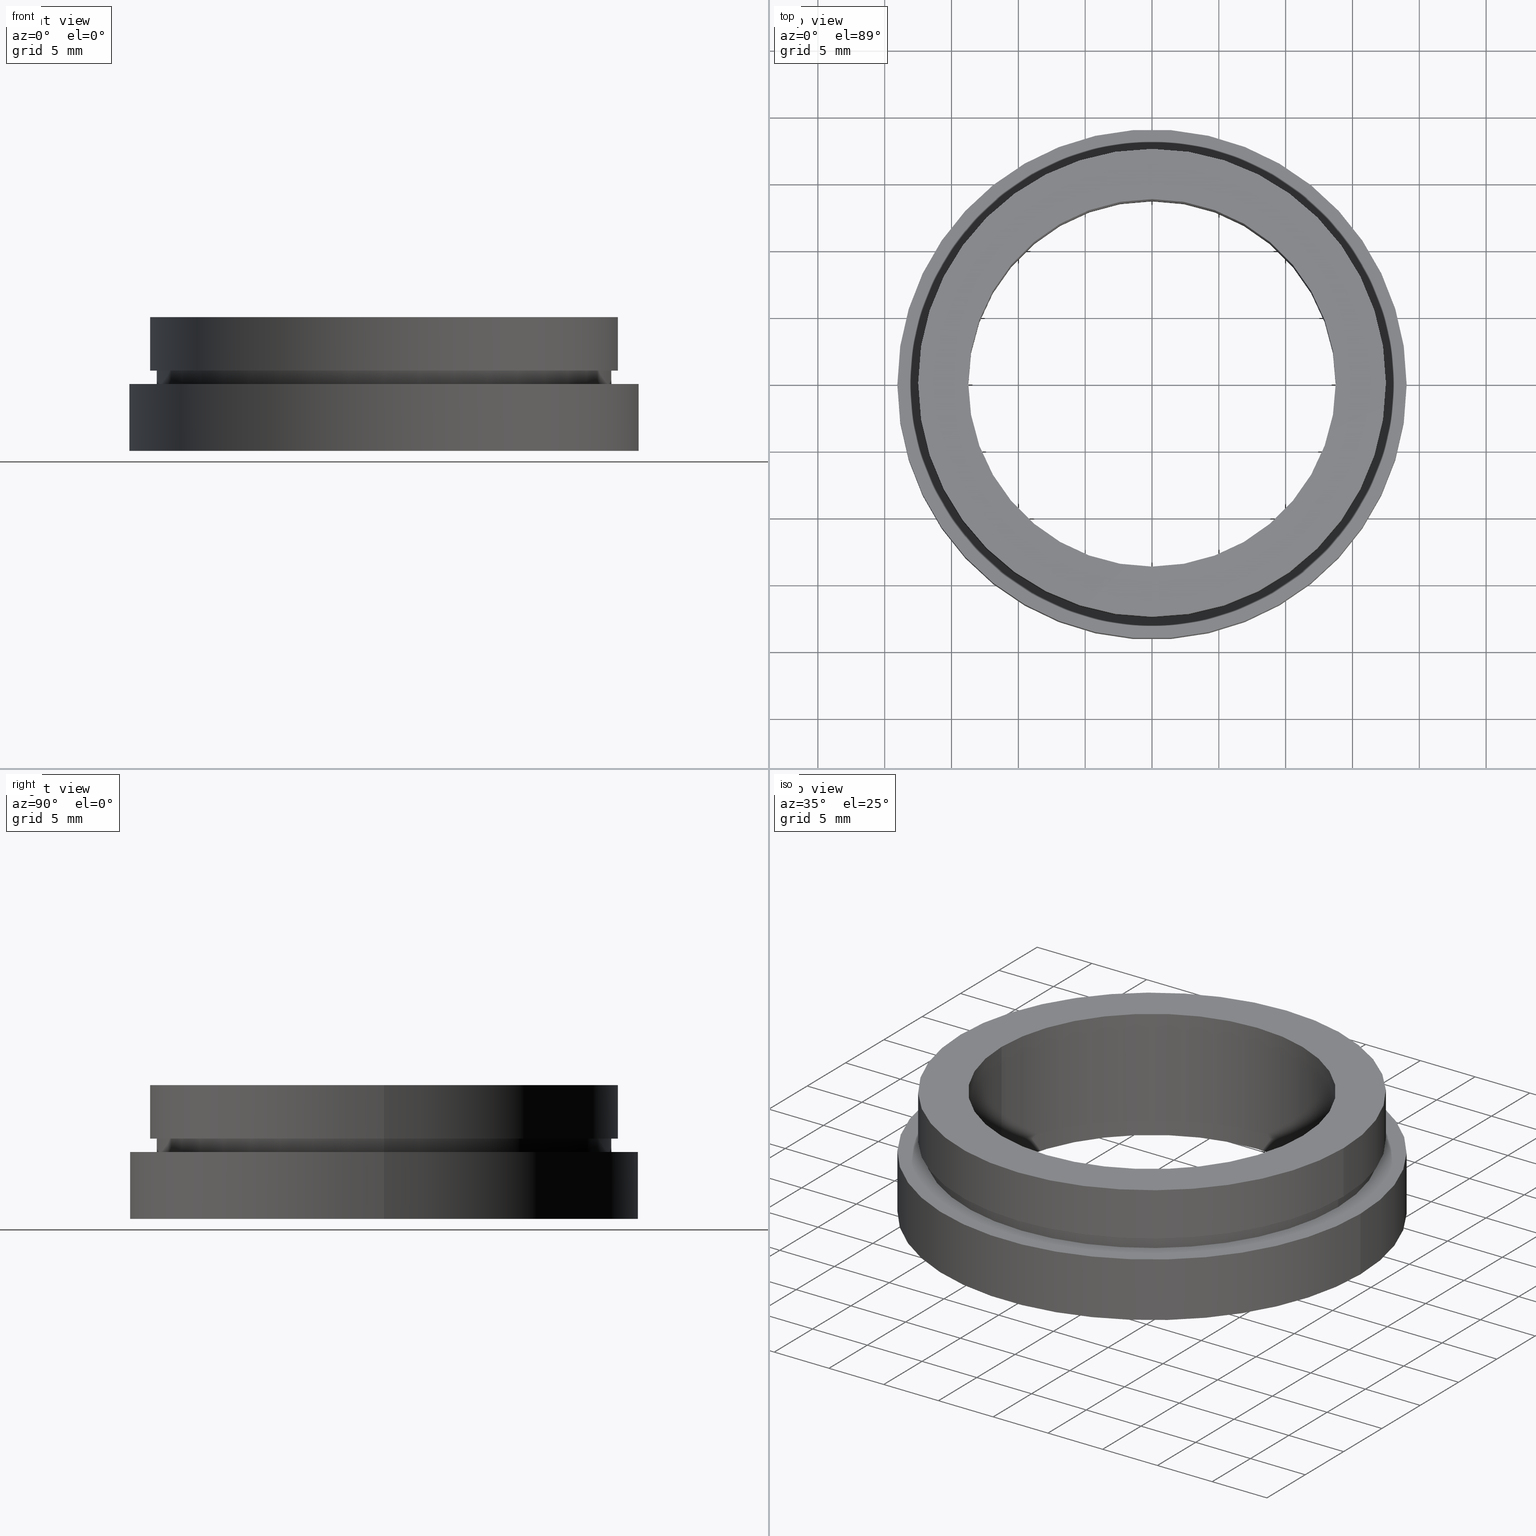
[diagram: canonical four-view strip — front | top / right | iso, engineering-drawing reading convention]
A machine part, canonical four-view strip (front | top / right | iso — engineering-drawing reading convention). The complete STEP part file that produces these views, byte-faithful:
ISO-10303-21;
HEADER;
FILE_DESCRIPTION (( 'STEP AP214' ),
    '1' );
FILE_NAME ('504048.STEP',
    '2019-09-16T03:32:41',
    ( 'user' ),
    ( '΢���й�' ),
    'SwSTEP 2.0',
    'SolidWorks 2016',
    '' );
FILE_SCHEMA (( 'AUTOMOTIVE_DESIGN' ));
ENDSEC;

DATA;
#1 = ADVANCED_FACE ( 'NONE', ( #116 ), #391, .T. ) ;
#2 = CARTESIAN_POINT ( 'NONE',  ( -13.75000000000000500, 0.0000000000000000000, -9.999999999999998200 ) ) ;
#3 = AXIS2_PLACEMENT_3D ( 'NONE', #252, #27, #156 ) ;
#4 = CARTESIAN_POINT ( 'NONE',  ( 17.00000000000000400, 2.081899558550500700E-015, -5.000000000000000900 ) ) ;
#5 = DIRECTION ( 'NONE',  ( -0.0000000000000000000, 0.0000000000000000000, -1.000000000000000000 ) ) ;
#6 = ORIENTED_EDGE ( 'NONE', *, *, #59, .T. ) ;
#7 = DIRECTION ( 'NONE',  ( -1.000000000000000000, 0.0000000000000000000, 0.0000000000000000000 ) ) ;
#8 = CARTESIAN_POINT ( 'NONE',  ( -13.75000000000000400, 0.0000000000000000000, 0.0000000000000000000 ) ) ;
#9 = FACE_OUTER_BOUND ( 'NONE', #60, .T. ) ;
#10 = ADVANCED_FACE ( 'NONE', ( #416 ), #41, .F. ) ;
#11 = DIRECTION ( 'NONE',  ( -0.0000000000000000000, -0.0000000000000000000, -1.000000000000000000 ) ) ;
#12 = FACE_OUTER_BOUND ( 'NONE', #78, .T. ) ;
#13 = DIRECTION ( 'NONE',  ( -1.000000000000000000, 0.0000000000000000000, 0.0000000000000000000 ) ) ;
#14 = ORIENTED_EDGE ( 'NONE', *, *, #316, .T. ) ;
#15 = AXIS2_PLACEMENT_3D ( 'NONE', #136, #230, #246 ) ;
#16 = DIRECTION ( 'NONE',  ( 1.000000000000000000, 0.0000000000000000000, -0.0000000000000000000 ) ) ;
#17 =( GEOMETRIC_REPRESENTATION_CONTEXT ( 3 ) GLOBAL_UNCERTAINTY_ASSIGNED_CONTEXT ( ( #304 ) ) GLOBAL_UNIT_ASSIGNED_CONTEXT ( ( #326, #81, #425 ) ) REPRESENTATION_CONTEXT ( 'NONE', 'WORKASPACE' ) );
#18 = CLOSED_SHELL ( 'NONE', ( #202, #407, #371, #278, #176, #1, #100, #135, #38, #401, #311, #10 ) ) ;
#19 =( LENGTH_UNIT ( ) NAMED_UNIT ( * ) SI_UNIT ( .MILLI., .METRE. ) );
#20 = CARTESIAN_POINT ( 'NONE',  ( 17.00000000000000400, 0.0000000000000000000, -5.000000000000000000 ) ) ;
#21 = FILL_AREA_STYLE_COLOUR ( '', #148 ) ;
#22 = CYLINDRICAL_SURFACE ( 'NONE', #3, 17.00000000000000400 ) ;
#23 = PRESENTATION_STYLE_ASSIGNMENT (( #276 ) ) ;
#24 = MECHANICAL_DESIGN_GEOMETRIC_PRESENTATION_REPRESENTATION (  '', ( #95 ), #17 ) ;
#25 = DIRECTION ( 'NONE',  ( -0.0000000000000000000, -0.0000000000000000000, -1.000000000000000000 ) ) ;
#26 = CARTESIAN_POINT ( 'NONE',  ( -19.05000000000000400, 0.0000000000000000000, -19.14057971014493000 ) ) ;
#27 = DIRECTION ( 'NONE',  ( -0.0000000000000000000, -0.0000000000000000000, -1.000000000000000000 ) ) ;
#28 = COLOUR_RGB ( '',1.000000000000000000, 1.000000000000000000, 1.000000000000000000 ) ;
#29 = EDGE_CURVE ( 'NONE', #339, #328, #33, .T. ) ;
#30 = CARTESIAN_POINT ( 'NONE',  ( 0.0000000000000000000, 0.0000000000000000000, -19.14057971014493000 ) ) ;
#31 = EDGE_CURVE ( 'NONE', #67, #261, #192, .T. ) ;
#32 = ORIENTED_EDGE ( 'NONE', *, *, #345, .T. ) ;
#33 = CIRCLE ( 'NONE', #255, 17.00000000000000400 ) ;
#34 = CIRCLE ( 'NONE', #172, 13.75000000000000500 ) ;
#35 = CARTESIAN_POINT ( 'NONE',  ( 0.0000000000000000000, 0.0000000000000000000, -4.000000000000000000 ) ) ;
#36 = SURFACE_SIDE_STYLE ('',( #299 ) ) ;
#37 = PRESENTATION_LAYER_ASSIGNMENT (  '', '', ( #95 ) ) ;
#38 = ADVANCED_FACE ( 'NONE', ( #215, #154 ), #420, .F. ) ;
#39 = CARTESIAN_POINT ( 'NONE',  ( 0.0000000000000000000, 0.0000000000000000000, -19.14057971014493000 ) ) ;
#40 = APPLICATION_PROTOCOL_DEFINITION ( 'draft international standard', 'automotive_design', 1998, #80 ) ;
#41 = CYLINDRICAL_SURFACE ( 'NONE', #218, 13.75000000000000500 ) ;
#42 = DIRECTION ( 'NONE',  ( -0.0000000000000000000, -0.0000000000000000000, -1.000000000000000000 ) ) ;
#43 = ORIENTED_EDGE ( 'NONE', *, *, #321, .T. ) ;
#44 = FILL_AREA_STYLE_COLOUR ( '', #28 ) ;
#45 = EDGE_LOOP ( 'NONE', ( #219, #410 ) ) ;
#46 = CARTESIAN_POINT ( 'NONE',  ( 17.50000000000000400, 0.0000000000000000000, -4.000000000000000000 ) ) ;
#47 = AXIS2_PLACEMENT_3D ( 'NONE', #203, #123, #57 ) ;
#48 = CARTESIAN_POINT ( 'NONE',  ( -17.50000000000000400, 0.0000000000000000000, -4.000000000000000000 ) ) ;
#49 = ORIENTED_EDGE ( 'NONE', *, *, #181, .T. ) ;
#50 = EDGE_CURVE ( 'NONE', #178, #399, #370, .T. ) ;
#51 = ORIENTED_EDGE ( 'NONE', *, *, #316, .F. ) ;
#52 = PRESENTATION_LAYER_ASSIGNMENT (  '', '', ( #240 ) ) ;
#53 = ORIENTED_EDGE ( 'NONE', *, *, #149, .F. ) ;
#54 = SURFACE_STYLE_USAGE ( .BOTH. , #129 ) ;
#55 = SURFACE_STYLE_USAGE ( .BOTH. , #174 ) ;
#56 =( LENGTH_UNIT ( ) NAMED_UNIT ( * ) SI_UNIT ( .MILLI., .METRE. ) );
#57 = DIRECTION ( 'NONE',  ( -1.000000000000000000, 0.0000000000000000000, 0.0000000000000000000 ) ) ;
#58 = AXIS2_PLACEMENT_3D ( 'NONE', #291, #159, #161 ) ;
#59 = EDGE_CURVE ( 'NONE', #160, #398, #34, .T. ) ;
#60 = EDGE_LOOP ( 'NONE', ( #405, #94, #354, #79 ) ) ;
#61 = STYLED_ITEM ( 'NONE', ( #310 ), #1 ) ;
#62 = LINE ( 'NONE', #237, #323 ) ;
#63 = CARTESIAN_POINT ( 'NONE',  ( 0.0000000000000000000, 0.0000000000000000000, 0.0000000000000000000 ) ) ;
#64 = SURFACE_STYLE_USAGE ( .BOTH. , #388 ) ;
#65 = AXIS2_PLACEMENT_3D ( 'NONE', #205, #188, #369 ) ;
#66 = ORIENTED_EDGE ( 'NONE', *, *, #367, .F. ) ;
#67 = VERTEX_POINT ( 'NONE', #308 ) ;
#68 = DIRECTION ( 'NONE',  ( -1.000000000000000000, 0.0000000000000000000, 0.0000000000000000000 ) ) ;
#69 = STYLED_ITEM ( 'NONE', ( #72 ), #10 ) ;
#70 = DIRECTION ( 'NONE',  ( 1.000000000000000000, 0.0000000000000000000, -0.0000000000000000000 ) ) ;
#71 = DIRECTION ( 'NONE',  ( -1.000000000000000000, 0.0000000000000000000, 0.0000000000000000000 ) ) ;
#72 = PRESENTATION_STYLE_ASSIGNMENT (( #298 ) ) ;
#73 = EDGE_LOOP ( 'NONE', ( #122, #153 ) ) ;
#74 = CARTESIAN_POINT ( 'NONE',  ( 17.00000000000000400, 2.081899558550500700E-015, -4.000000000000000000 ) ) ;
#75 = ORIENTED_EDGE ( 'NONE', *, *, #279, .F. ) ;
#76 = FILL_AREA_STYLE_COLOUR ( '', #273 ) ;
#77 = CARTESIAN_POINT ( 'NONE',  ( 0.0000000000000000000, 0.0000000000000000000, 0.0000000000000000000 ) ) ;
#78 = EDGE_LOOP ( 'NONE', ( #200, #197 ) ) ;
#79 = ORIENTED_EDGE ( 'NONE', *, *, #294, .F. ) ;
#80 = APPLICATION_CONTEXT ( 'automotive_design' ) ;
#81 =( NAMED_UNIT ( * ) PLANE_ANGLE_UNIT ( ) SI_UNIT ( $, .RADIAN. ) );
#82 =( NAMED_UNIT ( * ) SI_UNIT ( $, .STERADIAN. ) SOLID_ANGLE_UNIT ( ) );
#83 = SURFACE_STYLE_FILL_AREA ( #168 ) ;
#84 = AXIS2_PLACEMENT_3D ( 'NONE', #211, #108, #347 ) ;
#85 = CIRCLE ( 'NONE', #106, 13.75000000000000400 ) ;
#86 = AXIS2_PLACEMENT_3D ( 'NONE', #381, #306, #429 ) ;
#87 = SURFACE_STYLE_FILL_AREA ( #315 ) ;
#88 = CARTESIAN_POINT ( 'NONE',  ( -19.05000000000000100, 0.0000000000000000000, -5.000000000000000900 ) ) ;
#89 = SURFACE_SIDE_STYLE ('',( #210 ) ) ;
#90 = ORIENTED_EDGE ( 'NONE', *, *, #149, .T. ) ;
#91 = FILL_AREA_STYLE ('',( #44 ) ) ;
#92 = ORIENTED_EDGE ( 'NONE', *, *, #336, .F. ) ;
#93 = AXIS2_PLACEMENT_3D ( 'NONE', #124, #355, #71 ) ;
#94 = ORIENTED_EDGE ( 'NONE', *, *, #31, .T. ) ;
#95 = STYLED_ITEM ( 'NONE', ( #23 ), #202 ) ;
#96 = COLOUR_RGB ( '',1.000000000000000000, 1.000000000000000000, 1.000000000000000000 ) ;
#97 = VERTEX_POINT ( 'NONE', #120 ) ;
#98 = ORIENTED_EDGE ( 'NONE', *, *, #336, .T. ) ;
#99 = FILL_AREA_STYLE ('',( #119 ) ) ;
#100 = ADVANCED_FACE ( 'NONE', ( #372, #389 ), #184, .F. ) ;
#101 = AXIS2_PLACEMENT_3D ( 'NONE', #30, #177, #13 ) ;
#102 = AXIS2_PLACEMENT_3D ( 'NONE', #164, #281, #297 ) ;
#103 = CARTESIAN_POINT ( 'NONE',  ( 0.0000000000000000000, 0.0000000000000000000, -19.14057971014493000 ) ) ;
#104 = PRODUCT_DEFINITION_SHAPE ( 'NONE', 'NONE',  #272 ) ;
#105 = ORIENTED_EDGE ( 'NONE', *, *, #307, .T. ) ;
#106 = AXIS2_PLACEMENT_3D ( 'NONE', #63, #287, #332 ) ;
#107 = DIRECTION ( 'NONE',  ( -1.000000000000000000, 0.0000000000000000000, 0.0000000000000000000 ) ) ;
#108 = DIRECTION ( 'NONE',  ( -0.0000000000000000000, -0.0000000000000000000, -1.000000000000000000 ) ) ;
#109 = ORIENTED_EDGE ( 'NONE', *, *, #169, .F. ) ;
#110 = VERTEX_POINT ( 'NONE', #8 ) ;
#111 =( LENGTH_UNIT ( ) NAMED_UNIT ( * ) SI_UNIT ( .MILLI., .METRE. ) );
#112 = CARTESIAN_POINT ( 'NONE',  ( 0.0000000000000000000, 0.0000000000000000000, -4.000000000000000000 ) ) ;
#113 = VERTEX_POINT ( 'NONE', #48 ) ;
#114 = ORIENTED_EDGE ( 'NONE', *, *, #427, .F. ) ;
#115 = EDGE_LOOP ( 'NONE', ( #378, #186, #166, #53 ) ) ;
#116 = FACE_OUTER_BOUND ( 'NONE', #361, .T. ) ;
#117 =( NAMED_UNIT ( * ) SI_UNIT ( $, .STERADIAN. ) SOLID_ANGLE_UNIT ( ) );
#118 = ORIENTED_EDGE ( 'NONE', *, *, #279, .T. ) ;
#119 = FILL_AREA_STYLE_COLOUR ( '', #360 ) ;
#120 = CARTESIAN_POINT ( 'NONE',  ( -17.50000000000000400, 0.0000000000000000000, 0.0000000000000000000 ) ) ;
#121 = VERTEX_POINT ( 'NONE', #359 ) ;
#122 = ORIENTED_EDGE ( 'NONE', *, *, #169, .T. ) ;
#123 = DIRECTION ( 'NONE',  ( -0.0000000000000000000, -0.0000000000000000000, -1.000000000000000000 ) ) ;
#124 = CARTESIAN_POINT ( 'NONE',  ( 0.0000000000000000000, 0.0000000000000000000, -4.000000000000000000 ) ) ;
#125 = ORIENTED_EDGE ( 'NONE', *, *, #367, .T. ) ;
#126 = AXIS2_PLACEMENT_3D ( 'NONE', #132, #322, #373 ) ;
#127 = UNCERTAINTY_MEASURE_WITH_UNIT (LENGTH_MEASURE( 1.000000000000000100E-005 ), #56, 'distance_accuracy_value', 'NONE');
#128 = CARTESIAN_POINT ( 'NONE',  ( 17.50000000000000400, 2.143131898507868600E-015, -4.000000000000000000 ) ) ;
#129 = SURFACE_SIDE_STYLE ('',( #87 ) ) ;
#130 = ORIENTED_EDGE ( 'NONE', *, *, #353, .T. ) ;
#131 = CIRCLE ( 'NONE', #15, 19.05000000000000100 ) ;
#132 = CARTESIAN_POINT ( 'NONE',  ( 0.0000000000000000000, 0.0000000000000000000, 0.0000000000000000000 ) ) ;
#133 = AXIS2_PLACEMENT_3D ( 'NONE', #77, #170, #363 ) ;
#134 = PRESENTATION_LAYER_ASSIGNMENT (  '', '', ( #61 ) ) ;
#135 = ADVANCED_FACE ( 'NONE', ( #413 ), #384, .T. ) ;
#136 = CARTESIAN_POINT ( 'NONE',  ( 0.0000000000000000000, 0.0000000000000000000, -5.000000000000000900 ) ) ;
#137 = ORIENTED_EDGE ( 'NONE', *, *, #158, .T. ) ;
#138 = ORIENTED_EDGE ( 'NONE', *, *, #333, .F. ) ;
#139 = AXIS2_PLACEMENT_3D ( 'NONE', #180, #380, #7 ) ;
#140 = ORIENTED_EDGE ( 'NONE', *, *, #345, .F. ) ;
#141 = EDGE_LOOP ( 'NONE', ( #114, #225 ) ) ;
#142 = AXIS2_PLACEMENT_3D ( 'NONE', #46, #223, #16 ) ;
#143 = DIRECTION ( 'NONE',  ( -0.0000000000000000000, -0.0000000000000000000, -1.000000000000000000 ) ) ;
#144 = ADVANCED_BREP_SHAPE_REPRESENTATION ( '504048', ( #234, #126 ), #351 ) ;
#145 = EDGE_LOOP ( 'NONE', ( #411, #49, #214, #194 ) ) ;
#146 = PRODUCT_DEFINITION_CONTEXT ( 'detailed design', #80, 'design' ) ;
#147 = FACE_OUTER_BOUND ( 'NONE', #163, .T. ) ;
#148 = COLOUR_RGB ( '',1.000000000000000000, 1.000000000000000000, 1.000000000000000000 ) ;
#149 = EDGE_CURVE ( 'NONE', #97, #113, #206, .T. ) ;
#150 = VERTEX_POINT ( 'NONE', #433 ) ;
#151 = CARTESIAN_POINT ( 'NONE',  ( 0.0000000000000000000, 0.0000000000000000000, -10.00000000000000000 ) ) ;
#152 =( NAMED_UNIT ( * ) PLANE_ANGLE_UNIT ( ) SI_UNIT ( $, .RADIAN. ) );
#153 = ORIENTED_EDGE ( 'NONE', *, *, #333, .T. ) ;
#154 = FACE_BOUND ( 'NONE', #232, .T. ) ;
#155 = PRESENTATION_STYLE_ASSIGNMENT (( #64 ) ) ;
#156 = DIRECTION ( 'NONE',  ( -1.000000000000000000, 0.0000000000000000000, 0.0000000000000000000 ) ) ;
#157 = AXIS2_PLACEMENT_3D ( 'NONE', #35, #11, #107 ) ;
#158 = EDGE_CURVE ( 'NONE', #398, #160, #379, .T. ) ;
#159 = DIRECTION ( 'NONE',  ( -0.0000000000000000000, -0.0000000000000000000, -1.000000000000000000 ) ) ;
#160 = VERTEX_POINT ( 'NONE', #2 ) ;
#161 = DIRECTION ( 'NONE',  ( -1.000000000000000000, 0.0000000000000000000, 0.0000000000000000000 ) ) ;
#162 = FACE_OUTER_BOUND ( 'NONE', #257, .T. ) ;
#163 = EDGE_LOOP ( 'NONE', ( #138, #329, #137, #92 ) ) ;
#164 = CARTESIAN_POINT ( 'NONE',  ( 0.0000000000000000000, 0.0000000000000000000, -9.999999999999998200 ) ) ;
#165 = EDGE_LOOP ( 'NONE', ( #130, #14 ) ) ;
#166 = ORIENTED_EDGE ( 'NONE', *, *, #353, .F. ) ;
#167 = DIRECTION ( 'NONE',  ( -0.0000000000000000000, -0.0000000000000000000, -1.000000000000000000 ) ) ;
#168 = FILL_AREA_STYLE ('',( #21 ) ) ;
#169 = EDGE_CURVE ( 'NONE', #110, #121, #85, .T. ) ;
#170 = DIRECTION ( 'NONE',  ( -0.0000000000000000000, -0.0000000000000000000, -1.000000000000000000 ) ) ;
#171 = ORIENTED_EDGE ( 'NONE', *, *, #50, .T. ) ;
#172 = AXIS2_PLACEMENT_3D ( 'NONE', #244, #394, #318 ) ;
#173 = VECTOR ( 'NONE', #350, 1000.000000000000000 ) ;
#174 = SURFACE_SIDE_STYLE ('',( #390 ) ) ;
#175 = CARTESIAN_POINT ( 'NONE',  ( -17.50000000000000400, 0.0000000000000000000, -19.14057971014493000 ) ) ;
#176 = ADVANCED_FACE ( 'NONE', ( #12, #432 ), #280, .F. ) ;
#177 = DIRECTION ( 'NONE',  ( -0.0000000000000000000, -0.0000000000000000000, -1.000000000000000000 ) ) ;
#178 = VERTEX_POINT ( 'NONE', #74 ) ;
#179 = CIRCLE ( 'NONE', #139, 17.50000000000000400 ) ;
#180 = CARTESIAN_POINT ( 'NONE',  ( 0.0000000000000000000, 0.0000000000000000000, -4.000000000000000000 ) ) ;
#181 = EDGE_CURVE ( 'NONE', #67, #342, #290, .T. ) ;
#182 = CARTESIAN_POINT ( 'NONE',  ( 17.00000000000000400, 2.081899558550500700E-015, -19.14057971014493000 ) ) ;
#183 =( LENGTH_UNIT ( ) NAMED_UNIT ( * ) SI_UNIT ( .MILLI., .METRE. ) );
#184 = PLANE ( 'NONE',  #142 ) ;
#185 =( LENGTH_UNIT ( ) NAMED_UNIT ( * ) SI_UNIT ( .MILLI., .METRE. ) );
#186 = ORIENTED_EDGE ( 'NONE', *, *, #245, .T. ) ;
#187 = FILL_AREA_STYLE_COLOUR ( '', #96 ) ;
#188 = DIRECTION ( 'NONE',  ( -0.0000000000000000000, 0.0000000000000000000, -1.000000000000000000 ) ) ;
#189 = CARTESIAN_POINT ( 'NONE',  ( 17.50000000000000400, 2.143131898507868600E-015, -19.14057971014493000 ) ) ;
#190 = AXIS2_PLACEMENT_3D ( 'NONE', #112, #258, #191 ) ;
#191 = DIRECTION ( 'NONE',  ( -1.000000000000000000, 0.0000000000000000000, 0.0000000000000000000 ) ) ;
#192 = CIRCLE ( 'NONE', #222, 19.05000000000000100 ) ;
#193 = EDGE_LOOP ( 'NONE', ( #140, #242 ) ) ;
#194 = ORIENTED_EDGE ( 'NONE', *, *, #383, .F. ) ;
#195 = CARTESIAN_POINT ( 'NONE',  ( 0.0000000000000000000, 0.0000000000000000000, -5.000000000000000900 ) ) ;
#196 = PRODUCT_RELATED_PRODUCT_CATEGORY ( 'part', '', ( #422 ) ) ;
#197 = ORIENTED_EDGE ( 'NONE', *, *, #321, .F. ) ;
#198 = DIRECTION ( 'NONE',  ( -0.0000000000000000000, -0.0000000000000000000, -1.000000000000000000 ) ) ;
#199 = DIRECTION ( 'NONE',  ( -0.0000000000000000000, -0.0000000000000000000, -1.000000000000000000 ) ) ;
#200 = ORIENTED_EDGE ( 'NONE', *, *, #313, .F. ) ;
#201 = EDGE_LOOP ( 'NONE', ( #343, #109, #98, #6 ) ) ;
#202 = ADVANCED_FACE ( 'NONE', ( #147 ), #286, .F. ) ;
#203 = CARTESIAN_POINT ( 'NONE',  ( 0.0000000000000000000, 0.0000000000000000000, -19.14057971014493000 ) ) ;
#204 = CARTESIAN_POINT ( 'NONE',  ( 0.0000000000000000000, 0.0000000000000000000, 0.0000000000000000000 ) ) ;
#205 = CARTESIAN_POINT ( 'NONE',  ( 13.75000000000000400, 0.0000000000000000000, 0.0000000000000000000 ) ) ;
#206 = LINE ( 'NONE', #175, #173 ) ;
#207 = COLOUR_RGB ( '',1.000000000000000000, 1.000000000000000000, 1.000000000000000000 ) ;
#208 = PRESENTATION_STYLE_ASSIGNMENT (( #417 ) ) ;
#209 = DIRECTION ( 'NONE',  ( -1.000000000000000000, 0.0000000000000000000, 0.0000000000000000000 ) ) ;
#210 = SURFACE_STYLE_FILL_AREA ( #341 ) ;
#211 = CARTESIAN_POINT ( 'NONE',  ( 0.0000000000000000000, 0.0000000000000000000, -19.14057971014493000 ) ) ;
#212 = UNCERTAINTY_MEASURE_WITH_UNIT (LENGTH_MEASURE( 1.000000000000000100E-005 ), #183, 'distance_accuracy_value', 'NONE');
#213 = AXIS2_PLACEMENT_3D ( 'NONE', #20, #5, #403 ) ;
#214 = ORIENTED_EDGE ( 'NONE', *, *, #307, .F. ) ;
#215 = FACE_OUTER_BOUND ( 'NONE', #141, .T. ) ;
#216 = ORIENTED_EDGE ( 'NONE', *, *, #29, .T. ) ;
#217 = DIRECTION ( 'NONE',  ( -1.000000000000000000, 0.0000000000000000000, 0.0000000000000000000 ) ) ;
#218 = AXIS2_PLACEMENT_3D ( 'NONE', #103, #233, #68 ) ;
#219 = ORIENTED_EDGE ( 'NONE', *, *, #59, .F. ) ;
#220 = DIRECTION ( 'NONE',  ( -1.000000000000000000, 0.0000000000000000000, 0.0000000000000000000 ) ) ;
#221 = CARTESIAN_POINT ( 'NONE',  ( 19.05000000000000400, 2.332952152375708400E-015, -10.00000000000000000 ) ) ;
#222 = AXIS2_PLACEMENT_3D ( 'NONE', #195, #143, #209 ) ;
#223 = DIRECTION ( 'NONE',  ( 0.0000000000000000000, 0.0000000000000000000, 1.000000000000000000 ) ) ;
#224 = ORIENTED_EDGE ( 'NONE', *, *, #245, .F. ) ;
#225 = ORIENTED_EDGE ( 'NONE', *, *, #31, .F. ) ;
#226 = EDGE_LOOP ( 'NONE', ( #66, #171, #254, #238 ) ) ;
#227 = CARTESIAN_POINT ( 'NONE',  ( 19.05000000000000400, 2.332952152375708400E-015, -19.14057971014493000 ) ) ;
#228 = PRESENTATION_LAYER_ASSIGNMENT (  '', '', ( #377 ) ) ;
#229 = PRESENTATION_LAYER_ASSIGNMENT (  '', '', ( #69 ) ) ;
#230 = DIRECTION ( 'NONE',  ( -0.0000000000000000000, -0.0000000000000000000, -1.000000000000000000 ) ) ;
#231 = ORIENTED_EDGE ( 'NONE', *, *, #275, .F. ) ;
#232 = EDGE_LOOP ( 'NONE', ( #118, #216 ) ) ;
#233 = DIRECTION ( 'NONE',  ( -0.0000000000000000000, -0.0000000000000000000, -1.000000000000000000 ) ) ;
#234 = MANIFOLD_SOLID_BREP ( '��ת1', #18 ) ;
#235 = MECHANICAL_DESIGN_GEOMETRIC_PRESENTATION_REPRESENTATION (  '', ( #240 ), #319 ) ;
#236 = CARTESIAN_POINT ( 'NONE',  ( -19.05000000000000400, 0.0000000000000000000, -10.00000000000000000 ) ) ;
#237 = CARTESIAN_POINT ( 'NONE',  ( -17.00000000000000400, 0.0000000000000000000, -19.14057971014493000 ) ) ;
#238 = ORIENTED_EDGE ( 'NONE', *, *, #29, .F. ) ;
#239 = VECTOR ( 'NONE', #349, 1000.000000000000000 ) ;
#240 = STYLED_ITEM ( 'NONE', ( #208 ), #234 ) ;
#241 =( LENGTH_UNIT ( ) NAMED_UNIT ( * ) SI_UNIT ( .MILLI., .METRE. ) );
#242 = ORIENTED_EDGE ( 'NONE', *, *, #50, .F. ) ;
#243 = LINE ( 'NONE', #189, #324 ) ;
#244 = CARTESIAN_POINT ( 'NONE',  ( 0.0000000000000000000, 0.0000000000000000000, -9.999999999999998200 ) ) ;
#245 = EDGE_CURVE ( 'NONE', #150, #251, #243, .T. ) ;
#246 = DIRECTION ( 'NONE',  ( -1.000000000000000000, 0.0000000000000000000, 0.0000000000000000000 ) ) ;
#247 = VECTOR ( 'NONE', #25, 1000.000000000000000 ) ;
#248 = CARTESIAN_POINT ( 'NONE',  ( 0.0000000000000000000, 0.0000000000000000000, -5.000000000000000900 ) ) ;
#249 = AXIS2_PLACEMENT_3D ( 'NONE', #151, #419, #421 ) ;
#250 =( GEOMETRIC_REPRESENTATION_CONTEXT ( 3 ) GLOBAL_UNCERTAINTY_ASSIGNED_CONTEXT ( ( #127 ) ) GLOBAL_UNIT_ASSIGNED_CONTEXT ( ( #56, #152, #409 ) ) REPRESENTATION_CONTEXT ( 'NONE', 'WORKASPACE' ) );
#251 = VERTEX_POINT ( 'NONE', #128 ) ;
#252 = CARTESIAN_POINT ( 'NONE',  ( 0.0000000000000000000, 0.0000000000000000000, -19.14057971014493000 ) ) ;
#253 = LINE ( 'NONE', #430, #239 ) ;
#254 = ORIENTED_EDGE ( 'NONE', *, *, #275, .T. ) ;
#255 = AXIS2_PLACEMENT_3D ( 'NONE', #248, #199, #217 ) ;
#256 = VECTOR ( 'NONE', #295, 1000.000000000000000 ) ;
#257 = EDGE_LOOP ( 'NONE', ( #32, #125, #75, #231 ) ) ;
#258 = DIRECTION ( 'NONE',  ( -0.0000000000000000000, -0.0000000000000000000, -1.000000000000000000 ) ) ;
#259 = AXIS2_PLACEMENT_3D ( 'NONE', #356, #395, #70 ) ;
#260 = DIRECTION ( 'NONE',  ( -0.0000000000000000000, -0.0000000000000000000, -1.000000000000000000 ) ) ;
#261 = VERTEX_POINT ( 'NONE', #88 ) ;
#262 = CIRCLE ( 'NONE', #348, 19.05000000000000400 ) ;
#263 = DIRECTION ( 'NONE',  ( -0.0000000000000000000, -0.0000000000000000000, -1.000000000000000000 ) ) ;
#264 = FACE_BOUND ( 'NONE', #45, .T. ) ;
#265 = FILL_AREA_STYLE ('',( #76 ) ) ;
#266 = DIRECTION ( 'NONE',  ( -0.0000000000000000000, -0.0000000000000000000, -1.000000000000000000 ) ) ;
#267 =( NAMED_UNIT ( * ) PLANE_ANGLE_UNIT ( ) SI_UNIT ( $, .RADIAN. ) );
#268 = FACE_OUTER_BOUND ( 'NONE', #115, .T. ) ;
#269 = CIRCLE ( 'NONE', #93, 17.00000000000000400 ) ;
#270 = PRESENTATION_LAYER_ASSIGNMENT (  '', '', ( #303 ) ) ;
#271 = LINE ( 'NONE', #182, #256 ) ;
#272 = PRODUCT_DEFINITION ( 'δ֪', '', #357, #146 ) ;
#273 = COLOUR_RGB ( '',1.000000000000000000, 1.000000000000000000, 1.000000000000000000 ) ;
#274 = AXIS2_PLACEMENT_3D ( 'NONE', #426, #198, #220 ) ;
#275 = EDGE_CURVE ( 'NONE', #399, #328, #62, .T. ) ;
#276 = SURFACE_STYLE_USAGE ( .BOTH. , #89 ) ;
#277 = CIRCLE ( 'NONE', #274, 17.50000000000000400 ) ;
#278 = ADVANCED_FACE ( 'NONE', ( #268 ), #293, .T. ) ;
#279 = EDGE_CURVE ( 'NONE', #328, #339, #289, .T. ) ;
#280 = PLANE ( 'NONE',  #65 ) ;
#281 = DIRECTION ( 'NONE',  ( -0.0000000000000000000, -0.0000000000000000000, -1.000000000000000000 ) ) ;
#282 = EDGE_CURVE ( 'NONE', #121, #398, #253, .T. ) ;
#283 = CIRCLE ( 'NONE', #325, 17.50000000000000400 ) ;
#284 = PRODUCT_CONTEXT ( 'NONE', #327, 'mechanical' ) ;
#285 =( NAMED_UNIT ( * ) PLANE_ANGLE_UNIT ( ) SI_UNIT ( $, .RADIAN. ) );
#286 = CYLINDRICAL_SURFACE ( 'NONE', #84, 13.75000000000000500 ) ;
#287 = DIRECTION ( 'NONE',  ( -0.0000000000000000000, -0.0000000000000000000, -1.000000000000000000 ) ) ;
#288 = CARTESIAN_POINT ( 'NONE',  ( -17.00000000000000400, 0.0000000000000000000, -5.000000000000000900 ) ) ;
#289 = CIRCLE ( 'NONE', #58, 17.00000000000000400 ) ;
#290 = LINE ( 'NONE', #227, #335 ) ;
#291 = CARTESIAN_POINT ( 'NONE',  ( 0.0000000000000000000, 0.0000000000000000000, -5.000000000000000900 ) ) ;
#292 = UNCERTAINTY_MEASURE_WITH_UNIT (LENGTH_MEASURE( 1.000000000000000100E-005 ), #185, 'distance_accuracy_value', 'NONE');
#293 = CYLINDRICAL_SURFACE ( 'NONE', #374, 17.50000000000000400 ) ;
#294 = EDGE_CURVE ( 'NONE', #342, #309, #300, .T. ) ;
#295 = DIRECTION ( 'NONE',  ( -0.0000000000000000000, -0.0000000000000000000, -1.000000000000000000 ) ) ;
#296 = FACE_OUTER_BOUND ( 'NONE', #317, .T. ) ;
#297 = DIRECTION ( 'NONE',  ( -1.000000000000000000, 0.0000000000000000000, 0.0000000000000000000 ) ) ;
#298 = SURFACE_STYLE_USAGE ( .BOTH. , #338 ) ;
#299 = SURFACE_STYLE_FILL_AREA ( #91 ) ;
#300 = CIRCLE ( 'NONE', #249, 19.05000000000000400 ) ;
#301 = LINE ( 'NONE', #406, #247 ) ;
#302 = CIRCLE ( 'NONE', #133, 13.75000000000000400 ) ;
#303 = STYLED_ITEM ( 'NONE', ( #368 ), #144 ) ;
#304 = UNCERTAINTY_MEASURE_WITH_UNIT (LENGTH_MEASURE( 1.000000000000000100E-005 ), #326, 'distance_accuracy_value', 'NONE');
#305 = VECTOR ( 'NONE', #167, 1000.000000000000000 ) ;
#306 = DIRECTION ( 'NONE',  ( -0.0000000000000000000, -0.0000000000000000000, -1.000000000000000000 ) ) ;
#307 = EDGE_CURVE ( 'NONE', #309, #342, #262, .T. ) ;
#308 = CARTESIAN_POINT ( 'NONE',  ( 19.05000000000000100, 2.332952152375708000E-015, -5.000000000000000900 ) ) ;
#309 = VERTEX_POINT ( 'NONE', #236 ) ;
#310 = PRESENTATION_STYLE_ASSIGNMENT (( #54 ) ) ;
#311 = ADVANCED_FACE ( 'NONE', ( #264, #296 ), #312, .F. ) ;
#312 = PLANE ( 'NONE',  #259 ) ;
#313 = EDGE_CURVE ( 'NONE', #97, #150, #283, .T. ) ;
#314 = DIRECTION ( 'NONE',  ( -1.000000000000000000, 0.0000000000000000000, 0.0000000000000000000 ) ) ;
#315 = FILL_AREA_STYLE ('',( #358 ) ) ;
#316 = EDGE_CURVE ( 'NONE', #251, #113, #334, .T. ) ;
#317 = EDGE_LOOP ( 'NONE', ( #105, #415 ) ) ;
#318 = DIRECTION ( 'NONE',  ( -1.000000000000000000, 0.0000000000000000000, 0.0000000000000000000 ) ) ;
#319 =( GEOMETRIC_REPRESENTATION_CONTEXT ( 3 ) GLOBAL_UNCERTAINTY_ASSIGNED_CONTEXT ( ( #320 ) ) GLOBAL_UNIT_ASSIGNED_CONTEXT ( ( #19, #267, #376 ) ) REPRESENTATION_CONTEXT ( 'NONE', 'WORKASPACE' ) );
#320 = UNCERTAINTY_MEASURE_WITH_UNIT (LENGTH_MEASURE( 1.000000000000000100E-005 ), #19, 'distance_accuracy_value', 'NONE');
#321 = EDGE_CURVE ( 'NONE', #150, #97, #277, .T. ) ;
#322 = DIRECTION ( 'NONE',  ( 0.0000000000000000000, 0.0000000000000000000, 1.000000000000000000 ) ) ;
#323 = VECTOR ( 'NONE', #42, 1000.000000000000000 ) ;
#324 = VECTOR ( 'NONE', #266, 1000.000000000000000 ) ;
#325 = AXIS2_PLACEMENT_3D ( 'NONE', #204, #346, #404 ) ;
#326 =( LENGTH_UNIT ( ) NAMED_UNIT ( * ) SI_UNIT ( .MILLI., .METRE. ) );
#327 = APPLICATION_CONTEXT ( 'automotive_design' ) ;
#328 = VERTEX_POINT ( 'NONE', #288 ) ;
#329 = ORIENTED_EDGE ( 'NONE', *, *, #282, .T. ) ;
#330 = CARTESIAN_POINT ( 'NONE',  ( 0.0000000000000000000, 0.0000000000000000000, -19.14057971014493000 ) ) ;
#331 = SURFACE_STYLE_FILL_AREA ( #265 ) ;
#332 = DIRECTION ( 'NONE',  ( -1.000000000000000000, 0.0000000000000000000, 0.0000000000000000000 ) ) ;
#333 = EDGE_CURVE ( 'NONE', #121, #110, #302, .T. ) ;
#334 = CIRCLE ( 'NONE', #157, 17.50000000000000400 ) ;
#335 = VECTOR ( 'NONE', #260, 1000.000000000000000 ) ;
#336 = EDGE_CURVE ( 'NONE', #110, #160, #301, .T. ) ;
#337 = CARTESIAN_POINT ( 'NONE',  ( -17.00000000000000400, 0.0000000000000000000, -4.000000000000000000 ) ) ;
#338 = SURFACE_SIDE_STYLE ('',( #83 ) ) ;
#339 = VERTEX_POINT ( 'NONE', #4 ) ;
#340 = DIRECTION ( 'NONE',  ( -0.0000000000000000000, -0.0000000000000000000, -1.000000000000000000 ) ) ;
#341 = FILL_AREA_STYLE ('',( #187 ) ) ;
#342 = VERTEX_POINT ( 'NONE', #221 ) ;
#343 = ORIENTED_EDGE ( 'NONE', *, *, #282, .F. ) ;
#344 = APPLICATION_PROTOCOL_DEFINITION ( 'draft international standard', 'automotive_design', 1998, #327 ) ;
#345 = EDGE_CURVE ( 'NONE', #399, #178, #269, .T. ) ;
#346 = DIRECTION ( 'NONE',  ( -0.0000000000000000000, -0.0000000000000000000, -1.000000000000000000 ) ) ;
#347 = DIRECTION ( 'NONE',  ( -1.000000000000000000, 0.0000000000000000000, 0.0000000000000000000 ) ) ;
#348 = AXIS2_PLACEMENT_3D ( 'NONE', #385, #396, #431 ) ;
#349 = DIRECTION ( 'NONE',  ( -0.0000000000000000000, -0.0000000000000000000, -1.000000000000000000 ) ) ;
#350 = DIRECTION ( 'NONE',  ( -0.0000000000000000000, -0.0000000000000000000, -1.000000000000000000 ) ) ;
#351 =( GEOMETRIC_REPRESENTATION_CONTEXT ( 3 ) GLOBAL_UNCERTAINTY_ASSIGNED_CONTEXT ( ( #292 ) ) GLOBAL_UNIT_ASSIGNED_CONTEXT ( ( #185, #434, #117 ) ) REPRESENTATION_CONTEXT ( 'NONE', 'WORKASPACE' ) );
#352 =( NAMED_UNIT ( * ) PLANE_ANGLE_UNIT ( ) SI_UNIT ( $, .RADIAN. ) );
#353 = EDGE_CURVE ( 'NONE', #113, #251, #179, .T. ) ;
#354 = ORIENTED_EDGE ( 'NONE', *, *, #383, .T. ) ;
#355 = DIRECTION ( 'NONE',  ( -0.0000000000000000000, -0.0000000000000000000, -1.000000000000000000 ) ) ;
#356 = CARTESIAN_POINT ( 'NONE',  ( 19.05000000000000400, 0.0000000000000000000, -9.999999999999998200 ) ) ;
#357 = PRODUCT_DEFINITION_FORMATION_WITH_SPECIFIED_SOURCE ( '�κ�', '', #422, .NOT_KNOWN. ) ;
#358 = FILL_AREA_STYLE_COLOUR ( '', #207 ) ;
#359 = CARTESIAN_POINT ( 'NONE',  ( 13.75000000000000400, 1.683889348827611200E-015, 0.0000000000000000000 ) ) ;
#360 = COLOUR_RGB ( '',1.000000000000000000, 1.000000000000000000, 1.000000000000000000 ) ;
#361 = EDGE_LOOP ( 'NONE', ( #224, #43, #90, #51 ) ) ;
#362 = LINE ( 'NONE', #26, #305 ) ;
#363 = DIRECTION ( 'NONE',  ( -1.000000000000000000, 0.0000000000000000000, 0.0000000000000000000 ) ) ;
#364 =( GEOMETRIC_REPRESENTATION_CONTEXT ( 3 ) GLOBAL_UNCERTAINTY_ASSIGNED_CONTEXT ( ( #424 ) ) GLOBAL_UNIT_ASSIGNED_CONTEXT ( ( #241, #375, #82 ) ) REPRESENTATION_CONTEXT ( 'NONE', 'WORKASPACE' ) );
#365 = CYLINDRICAL_SURFACE ( 'NONE', #412, 19.05000000000000400 ) ;
#366 = UNCERTAINTY_MEASURE_WITH_UNIT (LENGTH_MEASURE( 1.000000000000000100E-005 ), #111, 'distance_accuracy_value', 'NONE');
#367 = EDGE_CURVE ( 'NONE', #178, #339, #271, .T. ) ;
#368 = PRESENTATION_STYLE_ASSIGNMENT (( #55 ) ) ;
#369 = DIRECTION ( 'NONE',  ( -1.000000000000000000, 0.0000000000000000000, 0.0000000000000000000 ) ) ;
#370 = CIRCLE ( 'NONE', #190, 17.00000000000000400 ) ;
#371 = ADVANCED_FACE ( 'NONE', ( #162 ), #22, .T. ) ;
#372 = FACE_BOUND ( 'NONE', #193, .T. ) ;
#373 = DIRECTION ( 'NONE',  ( 1.000000000000000000, 0.0000000000000000000, 0.0000000000000000000 ) ) ;
#374 = AXIS2_PLACEMENT_3D ( 'NONE', #330, #263, #386 ) ;
#375 =( NAMED_UNIT ( * ) PLANE_ANGLE_UNIT ( ) SI_UNIT ( $, .RADIAN. ) );
#376 =( NAMED_UNIT ( * ) SI_UNIT ( $, .STERADIAN. ) SOLID_ANGLE_UNIT ( ) );
#377 = STYLED_ITEM ( 'NONE', ( #155 ), #278 ) ;
#378 = ORIENTED_EDGE ( 'NONE', *, *, #313, .T. ) ;
#379 = CIRCLE ( 'NONE', #102, 13.75000000000000500 ) ;
#380 = DIRECTION ( 'NONE',  ( -0.0000000000000000000, -0.0000000000000000000, -1.000000000000000000 ) ) ;
#381 = CARTESIAN_POINT ( 'NONE',  ( 0.0000000000000000000, 0.0000000000000000000, -19.14057971014493000 ) ) ;
#382 =( GEOMETRIC_REPRESENTATION_CONTEXT ( 3 ) GLOBAL_UNCERTAINTY_ASSIGNED_CONTEXT ( ( #366 ) ) GLOBAL_UNIT_ASSIGNED_CONTEXT ( ( #111, #352, #392 ) ) REPRESENTATION_CONTEXT ( 'NONE', 'WORKASPACE' ) );
#383 = EDGE_CURVE ( 'NONE', #261, #309, #362, .T. ) ;
#384 = CYLINDRICAL_SURFACE ( 'NONE', #86, 17.00000000000000400 ) ;
#385 = CARTESIAN_POINT ( 'NONE',  ( 0.0000000000000000000, 0.0000000000000000000, -10.00000000000000000 ) ) ;
#386 = DIRECTION ( 'NONE',  ( -1.000000000000000000, 0.0000000000000000000, 0.0000000000000000000 ) ) ;
#387 = SHAPE_DEFINITION_REPRESENTATION ( #104, #144 ) ;
#388 = SURFACE_SIDE_STYLE ('',( #331 ) ) ;
#389 = FACE_OUTER_BOUND ( 'NONE', #165, .T. ) ;
#390 = SURFACE_STYLE_FILL_AREA ( #99 ) ;
#391 = CYLINDRICAL_SURFACE ( 'NONE', #47, 17.50000000000000400 ) ;
#392 =( NAMED_UNIT ( * ) SI_UNIT ( $, .STERADIAN. ) SOLID_ANGLE_UNIT ( ) );
#393 =( GEOMETRIC_REPRESENTATION_CONTEXT ( 3 ) GLOBAL_UNCERTAINTY_ASSIGNED_CONTEXT ( ( #212 ) ) GLOBAL_UNIT_ASSIGNED_CONTEXT ( ( #183, #285, #397 ) ) REPRESENTATION_CONTEXT ( 'NONE', 'WORKASPACE' ) );
#394 = DIRECTION ( 'NONE',  ( -0.0000000000000000000, -0.0000000000000000000, -1.000000000000000000 ) ) ;
#395 = DIRECTION ( 'NONE',  ( 0.0000000000000000000, 0.0000000000000000000, 1.000000000000000000 ) ) ;
#396 = DIRECTION ( 'NONE',  ( -0.0000000000000000000, -0.0000000000000000000, -1.000000000000000000 ) ) ;
#397 =( NAMED_UNIT ( * ) SI_UNIT ( $, .STERADIAN. ) SOLID_ANGLE_UNIT ( ) );
#398 = VERTEX_POINT ( 'NONE', #428 ) ;
#399 = VERTEX_POINT ( 'NONE', #337 ) ;
#400 = MECHANICAL_DESIGN_GEOMETRIC_PRESENTATION_REPRESENTATION (  '', ( #377 ), #382 ) ;
#401 = ADVANCED_FACE ( 'NONE', ( #9 ), #365, .T. ) ;
#402 = CYLINDRICAL_SURFACE ( 'NONE', #101, 19.05000000000000400 ) ;
#403 = DIRECTION ( 'NONE',  ( -1.000000000000000000, 0.0000000000000000000, 0.0000000000000000000 ) ) ;
#404 = DIRECTION ( 'NONE',  ( -1.000000000000000000, 0.0000000000000000000, 0.0000000000000000000 ) ) ;
#405 = ORIENTED_EDGE ( 'NONE', *, *, #181, .F. ) ;
#406 = CARTESIAN_POINT ( 'NONE',  ( -13.75000000000000500, 0.0000000000000000000, -19.14057971014493000 ) ) ;
#407 = ADVANCED_FACE ( 'NONE', ( #418 ), #402, .T. ) ;
#408 = MECHANICAL_DESIGN_GEOMETRIC_PRESENTATION_REPRESENTATION (  '', ( #69 ), #250 ) ;
#409 =( NAMED_UNIT ( * ) SI_UNIT ( $, .STERADIAN. ) SOLID_ANGLE_UNIT ( ) );
#410 = ORIENTED_EDGE ( 'NONE', *, *, #158, .F. ) ;
#411 = ORIENTED_EDGE ( 'NONE', *, *, #427, .T. ) ;
#412 = AXIS2_PLACEMENT_3D ( 'NONE', #39, #340, #314 ) ;
#413 = FACE_OUTER_BOUND ( 'NONE', #226, .T. ) ;
#414 = MECHANICAL_DESIGN_GEOMETRIC_PRESENTATION_REPRESENTATION (  '', ( #61 ), #393 ) ;
#415 = ORIENTED_EDGE ( 'NONE', *, *, #294, .T. ) ;
#416 = FACE_OUTER_BOUND ( 'NONE', #201, .T. ) ;
#417 = SURFACE_STYLE_USAGE ( .BOTH. , #36 ) ;
#418 = FACE_OUTER_BOUND ( 'NONE', #145, .T. ) ;
#419 = DIRECTION ( 'NONE',  ( -0.0000000000000000000, -0.0000000000000000000, -1.000000000000000000 ) ) ;
#420 = PLANE ( 'NONE',  #213 ) ;
#421 = DIRECTION ( 'NONE',  ( -1.000000000000000000, 0.0000000000000000000, 0.0000000000000000000 ) ) ;
#422 = PRODUCT ( '504048', '504048', '', ( #284 ) ) ;
#423 = MECHANICAL_DESIGN_GEOMETRIC_PRESENTATION_REPRESENTATION (  '', ( #303 ), #364 ) ;
#424 = UNCERTAINTY_MEASURE_WITH_UNIT (LENGTH_MEASURE( 1.000000000000000100E-005 ), #241, 'distance_accuracy_value', 'NONE');
#425 =( NAMED_UNIT ( * ) SI_UNIT ( $, .STERADIAN. ) SOLID_ANGLE_UNIT ( ) );
#426 = CARTESIAN_POINT ( 'NONE',  ( 0.0000000000000000000, 0.0000000000000000000, 0.0000000000000000000 ) ) ;
#427 = EDGE_CURVE ( 'NONE', #261, #67, #131, .T. ) ;
#428 = CARTESIAN_POINT ( 'NONE',  ( 13.75000000000000500, 1.683889348827611400E-015, -9.999999999999998200 ) ) ;
#429 = DIRECTION ( 'NONE',  ( -1.000000000000000000, 0.0000000000000000000, 0.0000000000000000000 ) ) ;
#430 = CARTESIAN_POINT ( 'NONE',  ( 13.75000000000000500, 1.683889348827611400E-015, -19.14057971014493000 ) ) ;
#431 = DIRECTION ( 'NONE',  ( -1.000000000000000000, 0.0000000000000000000, 0.0000000000000000000 ) ) ;
#432 = FACE_BOUND ( 'NONE', #73, .T. ) ;
#433 = CARTESIAN_POINT ( 'NONE',  ( 17.50000000000000400, 2.143131898507868600E-015, 0.0000000000000000000 ) ) ;
#434 =( NAMED_UNIT ( * ) PLANE_ANGLE_UNIT ( ) SI_UNIT ( $, .RADIAN. ) );
ENDSEC;
END-ISO-10303-21;
